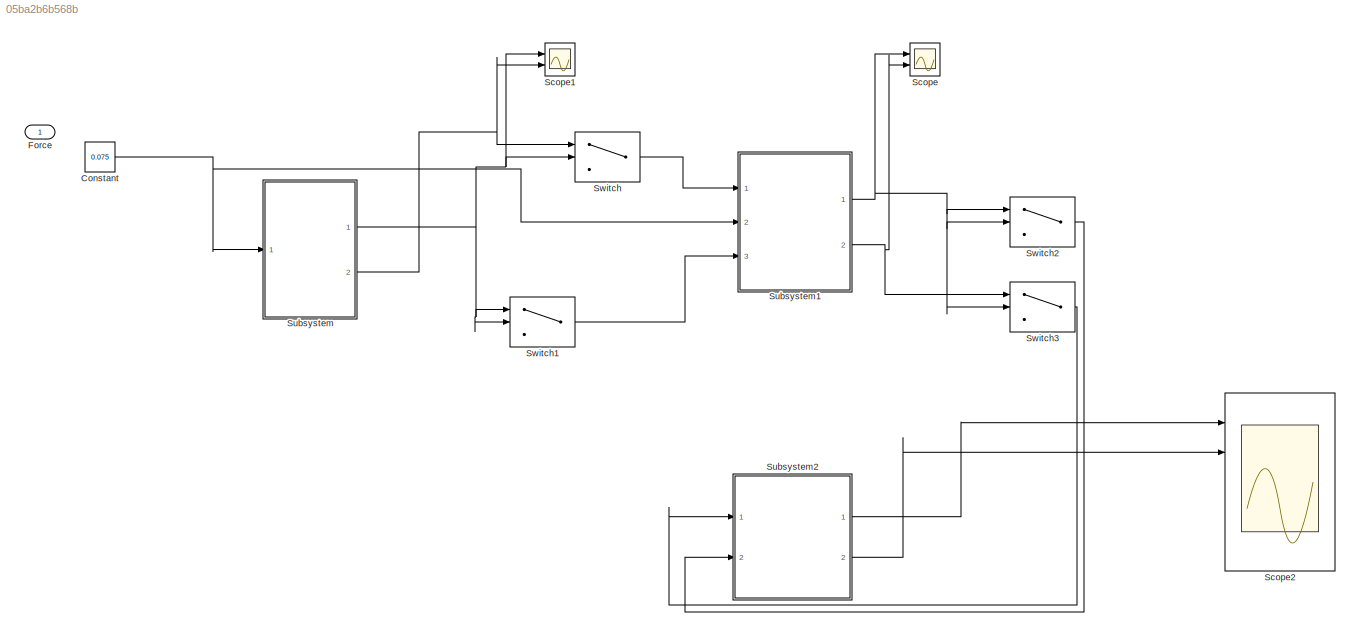
MODEL slx_05ba2b6b568b
KIND model
CONFIG AbsTol = auto
CONFIG EnableMultiTasking = off
CONFIG FixedStep = auto
CONFIG MaxStep = auto
CONFIG MinStep = auto
CONFIG RelTol = 1e-3
CONFIG SampleTimeConstraint = Unconstrained
CONFIG Solver = VariableStepAuto
CONFIG SolverName = VariableStepAuto
CONFIG StartTime = 0.0
CONFIG StopTime = 50
BLOCK [Constant] Constant
  Value = 0.075
BLOCK [Inport] Force
  IconDisplay = Port number
BLOCK [Scope] Scope
  Floating = off
  NumInputPorts = 2
  Ports = [2]
  ScopeSpecificationString = Simulink.scopes.TimeScopeBlockCfg('CurrentConfiguration', extmgr.ConfigurationSet(extmgr.Configuration('Core','General UI',true),extmgr.Configuration('Core','Source UI',true),extmgr.Configuration('Sources','WiredSimulink',true),extmgr.Configuration('Visuals','Time Domain',true,'SerializedDisplays',{struct('MinYLimReal','-3.65695','MaxYLimReal','29.83118','YLabelReal','','MinYLimMag','0.00000','Max...<+1401ch>
BLOCK [Scope] Scope1
  Floating = off
  NumInputPorts = 2
  Ports = [2]
  ScopeSpecificationString = Simulink.scopes.TimeScopeBlockCfg('CurrentConfiguration', extmgr.ConfigurationSet(extmgr.Configuration('Core','General UI',true),extmgr.Configuration('Core','Source UI',true),extmgr.Configuration('Sources','WiredSimulink',true,'DataLoggingVariableName','ScopeData1'),extmgr.Configuration('Visuals','Time Domain',true,'SerializedDisplays',{struct('MinYLimReal','-25.00000','MaxYLimReal','225.00000','Y...<+1473ch>
BLOCK [Scope] Scope2
  Floating = off
  NumInputPorts = 5
  Ports = [5]
  ScopeSpecificationString = Simulink.scopes.TimeScopeBlockCfg('CurrentConfiguration', extmgr.ConfigurationSet(extmgr.Configuration('Core','General UI',true),extmgr.Configuration('Core','Source UI',true),extmgr.Configuration('Sources','WiredSimulink',true,'DataLoggingVariableName','ScopeData2'),extmgr.Configuration('Visuals','Time Domain',true,'SerializedDisplays',{struct('MinYLimReal','-1.25','MaxYLimReal','11.25','YLabelRea...<+1483ch>
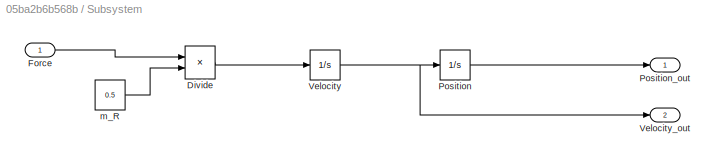
BLOCK [SubSystem] Subsystem
  Ports = [1, 2]
  RequestExecContextInheritance = off
BLOCK [Product] Subsystem/Divide
  InputSameDT = off
  Inputs = */
  OutDataTypeStr = Inherit: Inherit via internal rule
  Ports = [2, 1]
  RndMeth = Floor
  SaturateOnIntegerOverflow = off
BLOCK [Inport] Subsystem/Force
  IconDisplay = Port number
BLOCK [Integrator] Subsystem/Position
  Ports = [1, 1]
BLOCK [Outport] Subsystem/Position_out
  IconDisplay = Port number
BLOCK [Integrator] Subsystem/Velocity
  Ports = [1, 1]
BLOCK [Outport] Subsystem/Velocity_out
  IconDisplay = Port number
  Port = 2
BLOCK [Constant] Subsystem/m_R
  Value = 0.5
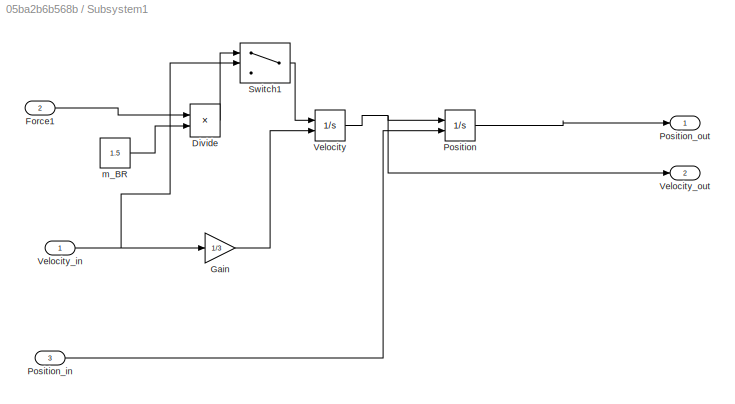
BLOCK [SubSystem] Subsystem1
  Ports = [3, 2]
  RequestExecContextInheritance = off
BLOCK [Product] Subsystem1/Divide
  InputSameDT = off
  Inputs = */
  OutDataTypeStr = Inherit: Inherit via internal rule
  Ports = [2, 1]
  RndMeth = Floor
  SaturateOnIntegerOverflow = off
BLOCK [Inport] Subsystem1/Force1
  IconDisplay = Port number
  Port = 2
BLOCK [Gain] Subsystem1/Gain
  Gain = 1/3
  OutDataTypeStr = Inherit: Inherit via internal rule
  ParamDataTypeStr = Inherit: Inherit via internal rule
  SaturateOnIntegerOverflow = off
BLOCK [Integrator] Subsystem1/Position
  InitialConditionSource = external
  Ports = [2, 1]
BLOCK [Inport] Subsystem1/Position_in
  IconDisplay = Port number
  Port = 3
BLOCK [Outport] Subsystem1/Position_out
  IconDisplay = Port number
BLOCK [Switch] Subsystem1/Switch1
  Criteria = u2 > Threshold
  InputSameDT = off
  SaturateOnIntegerOverflow = off
BLOCK [Integrator] Subsystem1/Velocity
  InitialConditionSource = external
  Ports = [2, 1]
BLOCK [Inport] Subsystem1/Velocity_in 
  IconDisplay = Port number
BLOCK [Outport] Subsystem1/Velocity_out
  IconDisplay = Port number
  Port = 2
BLOCK [Constant] Subsystem1/m_BR
  Value = 1.5
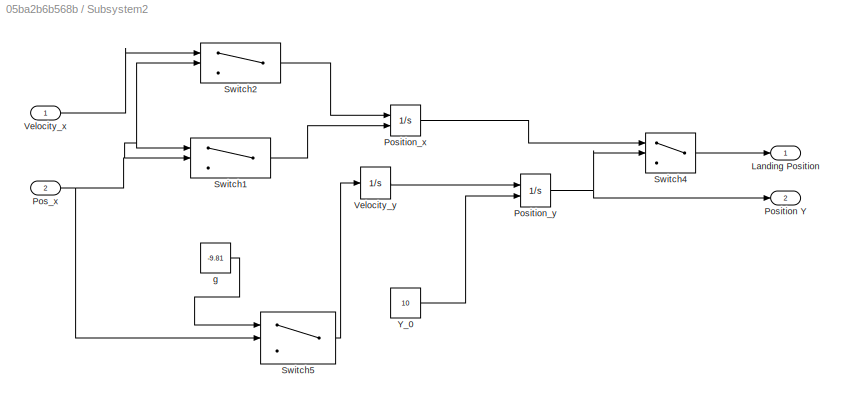
BLOCK [SubSystem] Subsystem2
  Ports = [2, 2]
  RequestExecContextInheritance = off
BLOCK [Outport] Subsystem2/Landing Position
  IconDisplay = Port number
BLOCK [Inport] Subsystem2/Pos_x
  IconDisplay = Port number
  Port = 2
BLOCK [Outport] Subsystem2/Position Y
  IconDisplay = Port number
  Port = 2
BLOCK [Integrator] Subsystem2/Position_x
  InitialConditionSource = external
  Ports = [2, 1]
BLOCK [Integrator] Subsystem2/Position_y
  InitialCondition = 10
  InitialConditionSource = external
  Ports = [2, 1]
BLOCK [Switch] Subsystem2/Switch1
  InputSameDT = off
  SaturateOnIntegerOverflow = off
  Threshold = 20
BLOCK [Switch] Subsystem2/Switch2
  InputSameDT = off
  SaturateOnIntegerOverflow = off
  Threshold = 20
BLOCK [Switch] Subsystem2/Switch4
  Criteria = u2 ~= 0
  InputSameDT = off
  SaturateOnIntegerOverflow = off
BLOCK [Switch] Subsystem2/Switch5
  InputSameDT = off
  SaturateOnIntegerOverflow = off
  Threshold = 20
BLOCK [Inport] Subsystem2/Velocity_x
  IconDisplay = Port number
BLOCK [Integrator] Subsystem2/Velocity_y
  Ports = [1, 1]
BLOCK [Constant] Subsystem2/Y_0
  Value = 10
BLOCK [Constant] Subsystem2/g
  Value = -9.81
BLOCK [Switch] Switch
  InputSameDT = off
  SaturateOnIntegerOverflow = off
  Threshold = 10
BLOCK [Switch] Switch1
  InputSameDT = off
  SaturateOnIntegerOverflow = off
  Threshold = 10
BLOCK [Switch] Switch2
  InputSameDT = off
  SaturateOnIntegerOverflow = off
  Threshold = 20
BLOCK [Switch] Switch3
  InputSameDT = off
  SaturateOnIntegerOverflow = off
  Threshold = 20
NET Constant:1 -> Subsystem1:2, Subsystem:1
LINE Subsystem/Divide:1 -> Subsystem/Velocity:1
LINE Subsystem/Force:1 -> Subsystem/Divide:1
LINE Subsystem/Position:1 -> Subsystem/Position_out:1
NET Subsystem/Velocity:1 -> Subsystem/Position:1, Subsystem/Velocity_out:1
LINE Subsystem/m_R:1 -> Subsystem/Divide:2
LINE Subsystem1/Divide:1 -> Subsystem1/Switch1:1
LINE Subsystem1/Force1:1 -> Subsystem1/Divide:1
LINE Subsystem1/Gain:1 -> Subsystem1/Velocity:2
LINE Subsystem1/Position:1 -> Subsystem1/Position_out:1
LINE Subsystem1/Position_in:1 -> Subsystem1/Position:2
LINE Subsystem1/Switch1:1 -> Subsystem1/Velocity:1
NET Subsystem1/Velocity:1 -> Subsystem1/Position:1, Subsystem1/Velocity_out:1
NET Subsystem1/Velocity_in :1 -> Subsystem1/Gain:1, Subsystem1/Switch1:2
LINE Subsystem1/m_BR:1 -> Subsystem1/Divide:2
NET Subsystem1:1 -> Scope:1, Switch2:1, Switch2:2, Switch3:2
NET Subsystem1:2 -> Scope:2, Switch3:1
NET Subsystem2/Pos_x:1 -> Subsystem2/Switch1:1, Subsystem2/Switch1:2, Subsystem2/Switch2:2, Subsystem2/Switch5:2
LINE Subsystem2/Position_x:1 -> Subsystem2/Switch4:1
NET Subsystem2/Position_y:1 -> Subsystem2/Position Y:1, Subsystem2/Switch4:2
LINE Subsystem2/Switch1:1 -> Subsystem2/Position_x:2
LINE Subsystem2/Switch2:1 -> Subsystem2/Position_x:1
LINE Subsystem2/Switch4:1 -> Subsystem2/Landing Position:1
LINE Subsystem2/Switch5:1 -> Subsystem2/Velocity_y:1
LINE Subsystem2/Velocity_x:1 -> Subsystem2/Switch2:1
LINE Subsystem2/Velocity_y:1 -> Subsystem2/Position_y:1
LINE Subsystem2/Y_0:1 -> Subsystem2/Position_y:2
LINE Subsystem2/g:1 -> Subsystem2/Switch5:1
LINE Subsystem2:1 -> Scope2:1
LINE Subsystem2:2 -> Scope2:2
NET Subsystem:1 -> Scope1:1, Switch1:1, Switch1:2, Switch:2
NET Subsystem:2 -> Scope1:2, Switch:1
LINE Switch1:1 -> Subsystem1:3
LINE Switch2:1 -> Subsystem2:2
LINE Switch3:1 -> Subsystem2:1
LINE Switch:1 -> Subsystem1:1
note: NET lines group one-source signal fan-out (src -> all destinations, sorted); 1:1 wires keep LINE
